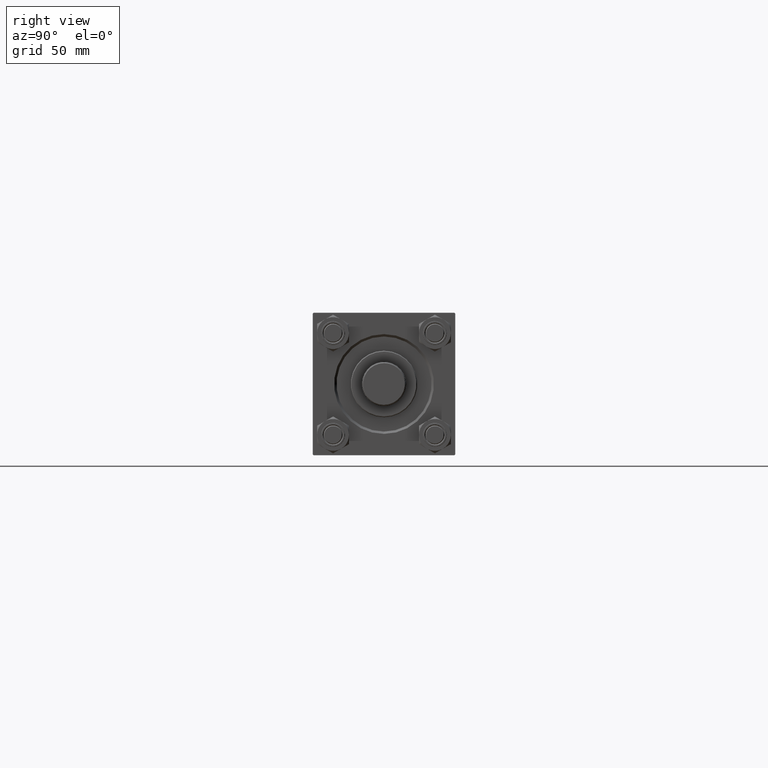
[diagram: clean part render]
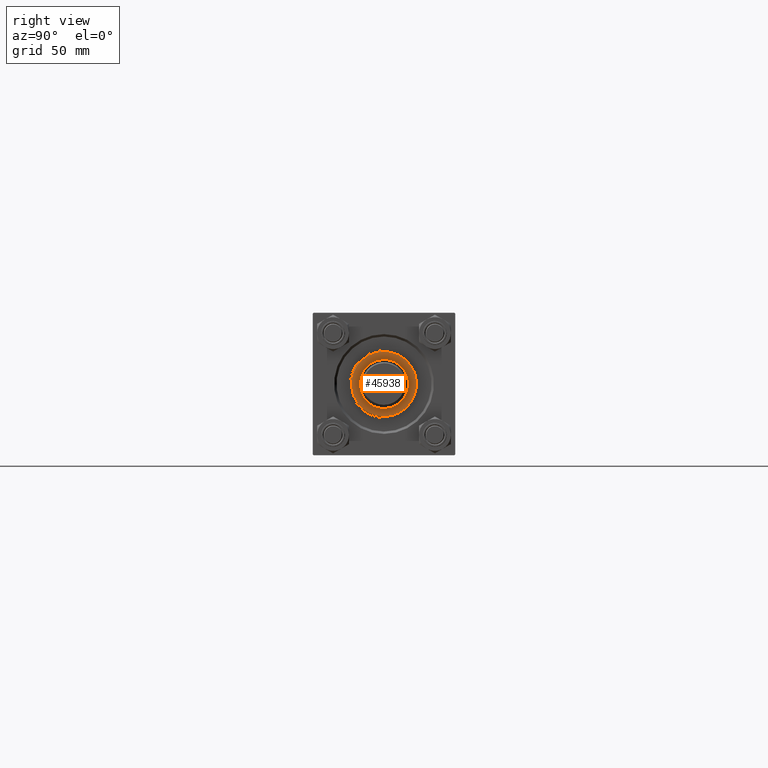
[diagram: same view with one face highlighted and labeled with its STEP entity id]
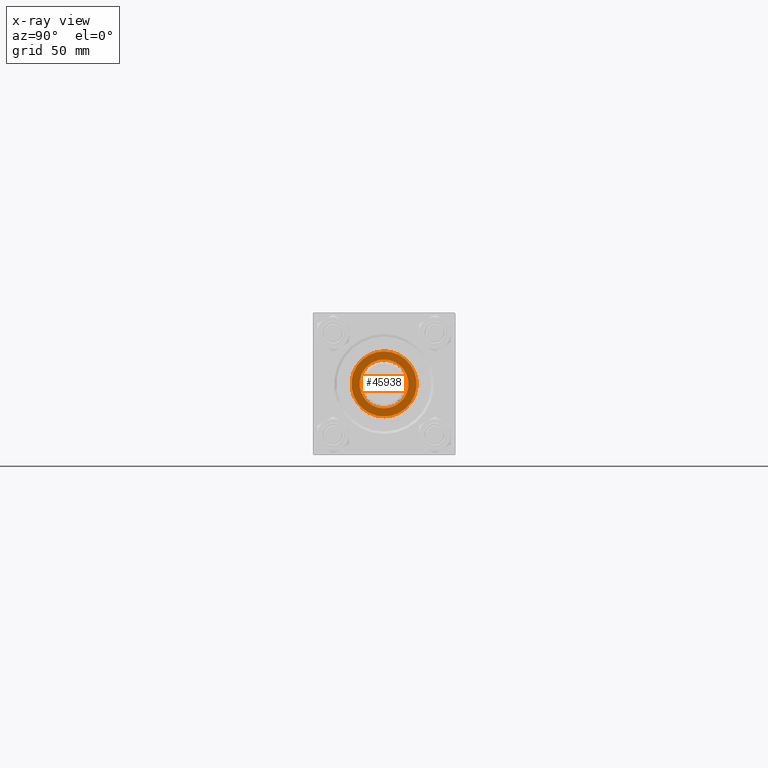
[diagram: x-ray of the same camera — body ghosted, the highlighted face saturated]
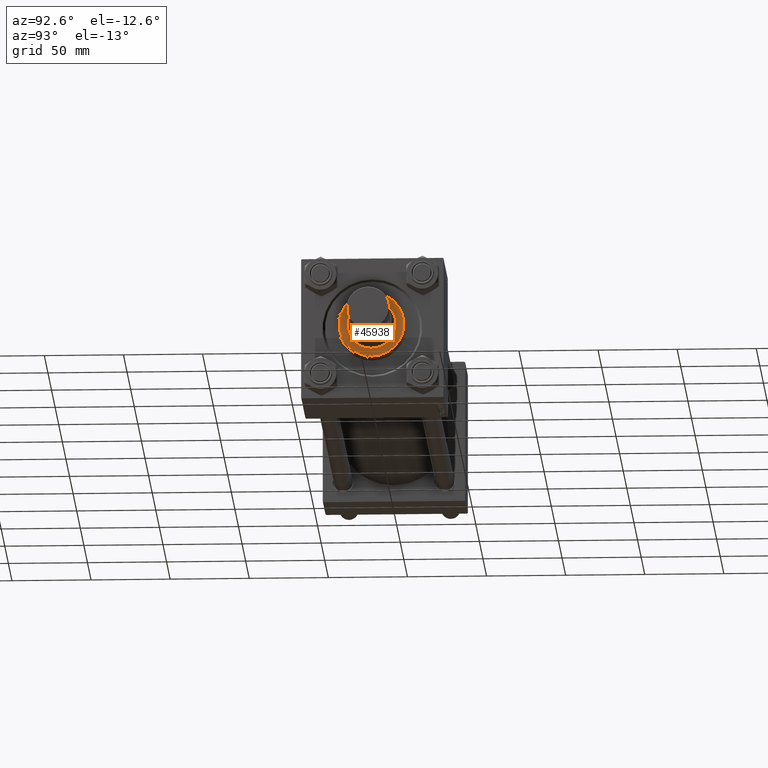
[diagram: same view with one face highlighted and labeled with its STEP entity id]
A machine part, right view. The second image highlights one B-rep face of the part: STEP entity #45938.
The next image is the same camera in x-ray: the body ghosted, the highlighted face saturated — about 0% of this face is hidden behind the body in this view.
A second angle (auxiliary view) of the same face is appended — the face is thin or edge-on in the first view.
In plain terms, the highlighted planar face has unit normal (1, 0, -0).
Its self-contained STEP definition (entity closure, byte-faithful):
#364 = CARTESIAN_POINT ( 'NONE',  ( -20.50000000000000355, 0.000000000000000000, 39.69999999999999574 ) ) ;
#1170 = AXIS2_PLACEMENT_3D ( 'NONE', #8363, #28400, #9372 ) ;
#3411 = PLANE ( 'NONE',  #26767 ) ;
#3622 = DIRECTION ( 'NONE',  ( 0.000000000000000000, 0.000000000000000000, 1.000000000000000000 ) ) ;
#5383 = EDGE_CURVE ( 'NONE', #39388, #13628, #11689, .T. ) ;
#6206 = AXIS2_PLACEMENT_3D ( 'NONE', #33274, #22082, #17525 ) ;
#7238 = FACE_BOUND ( 'NONE', #24951, .T. ) ;
#7446 = CARTESIAN_POINT ( 'NONE',  ( 0.000000000000000000, 0.000000000000000000, 39.69999999999999574 ) ) ;
#8172 = CARTESIAN_POINT ( 'NONE',  ( -15.50000000000000000, 1.898202538678397557E-15, 39.69999999999999574 ) ) ;
#8363 = CARTESIAN_POINT ( 'NONE',  ( 0.000000000000000000, 0.000000000000000000, 39.69999999999999574 ) ) ;
#9372 = DIRECTION ( 'NONE',  ( 1.000000000000000000, 0.000000000000000000, 0.000000000000000000 ) ) ;
#10897 = VERTEX_POINT ( 'NONE', #15324 ) ;
#11495 = CARTESIAN_POINT ( 'NONE',  ( 0.000000000000000000, 0.000000000000000000, 39.69999999999999574 ) ) ;
#11689 = CIRCLE ( 'NONE', #1170, 15.50000000000000000 ) ;
#13399 = AXIS2_PLACEMENT_3D ( 'NONE', #11495, #14560, #37921 ) ;
#13628 = VERTEX_POINT ( 'NONE', #31335 ) ;
#14560 = DIRECTION ( 'NONE',  ( 0.000000000000000000, 0.000000000000000000, 1.000000000000000000 ) ) ;
#15324 = CARTESIAN_POINT ( 'NONE',  ( 20.50000000000000355, 2.541142108230758269E-15, 39.69999999999999574 ) ) ;
#15462 = VERTEX_POINT ( 'NONE', #364 ) ;
#16182 = ORIENTED_EDGE ( 'NONE', *, *, #23756, .T. ) ;
#16878 = EDGE_CURVE ( 'NONE', #13628, #39388, #48983, .T. ) ;
#17525 = DIRECTION ( 'NONE',  ( 1.000000000000000000, 0.000000000000000000, 0.000000000000000000 ) ) ;
#18745 = ORIENTED_EDGE ( 'NONE', *, *, #33028, .T. ) ;
#18891 = CARTESIAN_POINT ( 'NONE',  ( 0.000000000000000000, 0.000000000000000000, 39.69999999999999574 ) ) ;
#20101 = DIRECTION ( 'NONE',  ( 1.000000000000000000, 0.000000000000000000, 0.000000000000000000 ) ) ;
#21602 = CIRCLE ( 'NONE', #6206, 20.50000000000000355 ) ;
#22082 = DIRECTION ( 'NONE',  ( 0.000000000000000000, 0.000000000000000000, 1.000000000000000000 ) ) ;
#22703 = FACE_OUTER_BOUND ( 'NONE', #25131, .T. ) ;
#23756 = EDGE_CURVE ( 'NONE', #15462, #10897, #21602, .T. ) ;
#24951 = EDGE_LOOP ( 'NONE', ( #49072, #25616 ) ) ;
#25131 = EDGE_LOOP ( 'NONE', ( #16182, #18745 ) ) ;
#25616 = ORIENTED_EDGE ( 'NONE', *, *, #5383, .F. ) ;
#26767 = AXIS2_PLACEMENT_3D ( 'NONE', #18891, #34386, #49891 ) ;
#28400 = DIRECTION ( 'NONE',  ( 0.000000000000000000, 0.000000000000000000, 1.000000000000000000 ) ) ;
#31335 = CARTESIAN_POINT ( 'NONE',  ( 15.50000000000000000, 0.000000000000000000, 39.69999999999999574 ) ) ;
#33028 = EDGE_CURVE ( 'NONE', #10897, #15462, #38807, .T. ) ;
#33274 = CARTESIAN_POINT ( 'NONE',  ( 0.000000000000000000, 0.000000000000000000, 39.69999999999999574 ) ) ;
#34386 = DIRECTION ( 'NONE',  ( 0.000000000000000000, 0.000000000000000000, 1.000000000000000000 ) ) ;
#37921 = DIRECTION ( 'NONE',  ( 1.000000000000000000, 0.000000000000000000, 0.000000000000000000 ) ) ;
#38807 = CIRCLE ( 'NONE', #50159, 20.50000000000000355 ) ;
#39388 = VERTEX_POINT ( 'NONE', #8172 ) ;
#45938 = ADVANCED_FACE ( 'NONE', ( #7238, #22703 ), #3411, .T. ) ;
#48983 = CIRCLE ( 'NONE', #13399, 15.50000000000000000 ) ;
#49072 = ORIENTED_EDGE ( 'NONE', *, *, #16878, .F. ) ;
#49891 = DIRECTION ( 'NONE',  ( 1.000000000000000000, 0.000000000000000000, -0.000000000000000000 ) ) ;
#50159 = AXIS2_PLACEMENT_3D ( 'NONE', #7446, #3622, #20101 ) ;